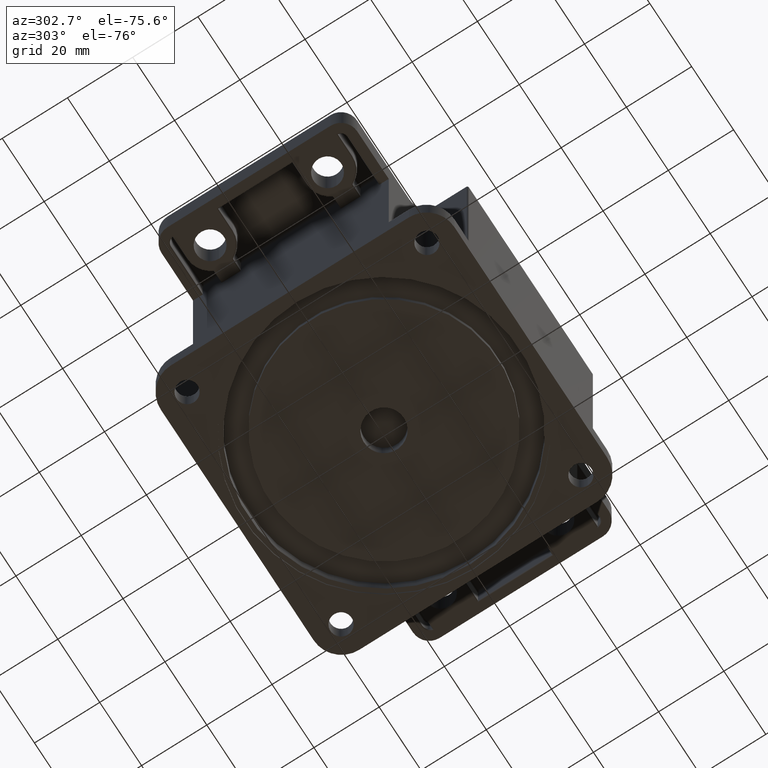
[diagram: clean part render]
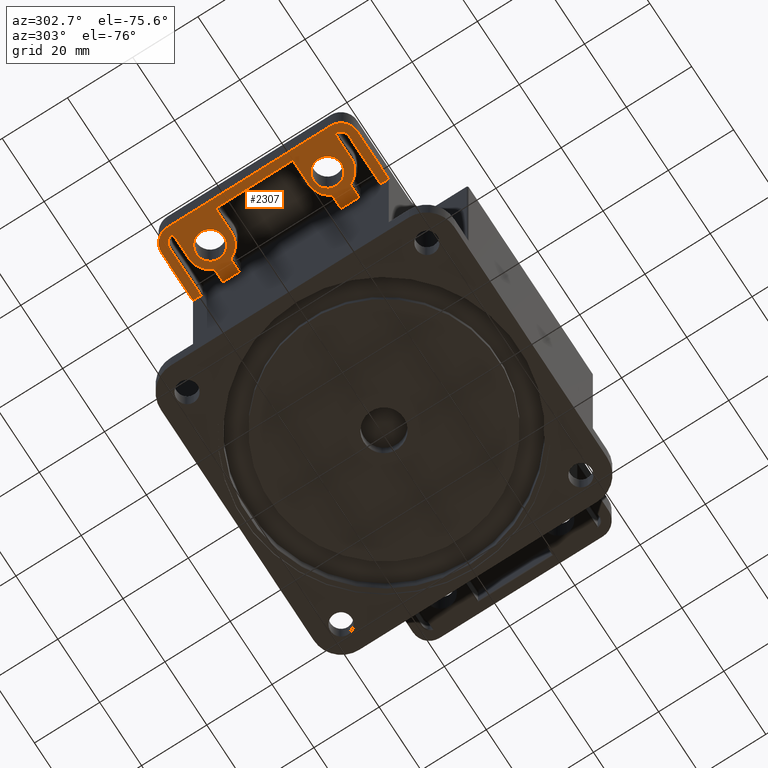
[diagram: same view with one face highlighted and labeled with its STEP entity id]
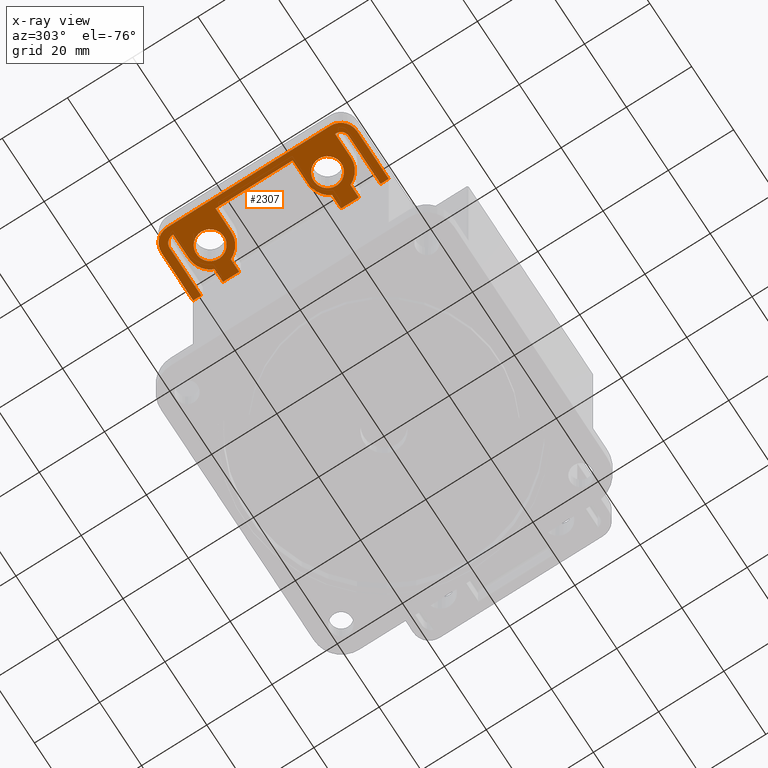
[diagram: x-ray of the same camera — body ghosted, the highlighted face saturated]
A machine part, auxiliary view. The second image highlights one B-rep face of the part: STEP entity #2307.
The next image is the same camera in x-ray: the body ghosted, the highlighted face saturated — about 0% of this face is hidden behind the body in this view.
In plain terms, the highlighted planar face has unit normal (0, -0, 1).
Its self-contained STEP definition (entity closure, byte-faithful):
#818 = EDGE_LOOP ( 'NONE', ( #1808, #1811 ) ) ;
#1808 = ORIENTED_EDGE ( 'NONE', *, *, #2164, .F. ) ;
#1811 = ORIENTED_EDGE ( 'NONE', *, *, #2127, .F. ) ;
#1824 = ORIENTED_EDGE ( 'NONE', *, *, #2146, .T. ) ;
#2123 = ORIENTED_EDGE ( 'NONE', *, *, #2124, .T. ) ;
#2124 = EDGE_CURVE ( 'NONE', #17512, #17479, #7681, .T. ) ;
#2125 = ORIENTED_EDGE ( 'NONE', *, *, #17516, .T. ) ;
#2126 = EDGE_LOOP ( 'NONE', ( #2123, #2125 ) ) ;
#2127 = EDGE_CURVE ( 'NONE', #2175, #2174, #7673, .T. ) ;
#2128 = EDGE_CURVE ( 'NONE', #2488, #2134, #7683, .T. ) ;
#2133 = EDGE_CURVE ( 'NONE', #2148, #2351, #7719, .T. ) ;
#2134 = VERTEX_POINT ( 'NONE', #7721 ) ;
#2145 = EDGE_CURVE ( 'NONE', #2147, #2148, #7714, .T. ) ;
#2146 = EDGE_CURVE ( 'NONE', #2134, #2147, #7765, .T. ) ;
#2147 = VERTEX_POINT ( 'NONE', #7759 ) ;
#2148 = VERTEX_POINT ( 'NONE', #7758 ) ;
#2149 = ORIENTED_EDGE ( 'NONE', *, *, #2145, .T. ) ;
#2150 = ORIENTED_EDGE ( 'NONE', *, *, #2133, .T. ) ;
#2164 = EDGE_CURVE ( 'NONE', #2174, #2175, #7739, .T. ) ;
#2174 = VERTEX_POINT ( 'NONE', #7500 ) ;
#2175 = VERTEX_POINT ( 'NONE', #7506 ) ;
#2205 = EDGE_CURVE ( 'NONE', #2318, #2418, #7796, .T. ) ;
#2294 = EDGE_CURVE ( 'NONE', #2388, #2455, #7952, .T. ) ;
#2307 = ADVANCED_FACE ( 'NONE', ( #8003, #7999, #7994 ), #8011, .F. ) ;
#2316 = EDGE_LOOP ( 'NONE', ( #2338, #2334, #2407, #2369, #2445, #2430, #2429, #2436, #2441, #2435, #2440, #2444, #2446, #2420, #2421, #2502, #2500, #2483, #2503, #2491, #2489, #2486, #2422, #1824, #2149, #2150 ) ) ;
#2318 = VERTEX_POINT ( 'NONE', #8040 ) ;
#2334 = ORIENTED_EDGE ( 'NONE', *, *, #2375, .T. ) ;
#2338 = ORIENTED_EDGE ( 'NONE', *, *, #2354, .T. ) ;
#2351 = VERTEX_POINT ( 'NONE', #8048 ) ;
#2354 = EDGE_CURVE ( 'NONE', #2351, #2378, #8059, .T. ) ;
#2369 = ORIENTED_EDGE ( 'NONE', *, *, #2447, .F. ) ;
#2375 = EDGE_CURVE ( 'NONE', #2378, #2388, #8168, .T. ) ;
#2378 = VERTEX_POINT ( 'NONE', #8157 ) ;
#2388 = VERTEX_POINT ( 'NONE', #8201 ) ;
#2407 = ORIENTED_EDGE ( 'NONE', *, *, #2294, .T. ) ;
#2417 = VERTEX_POINT ( 'NONE', #8207 ) ;
#2418 = VERTEX_POINT ( 'NONE', #8267 ) ;
#2419 = EDGE_CURVE ( 'NONE', #2418, #2417, #8270, .T. ) ;
#2420 = ORIENTED_EDGE ( 'NONE', *, *, #2419, .T. ) ;
#2421 = ORIENTED_EDGE ( 'NONE', *, *, #2496, .T. ) ;
#2422 = ORIENTED_EDGE ( 'NONE', *, *, #2128, .T. ) ;
#2423 = VERTEX_POINT ( 'NONE', #8268 ) ;
#2424 = EDGE_CURVE ( 'NONE', #2432, #2428, #8266, .T. ) ;
#2425 = EDGE_CURVE ( 'NONE', #2448, #2442, #8208, .T. ) ;
#2426 = EDGE_CURVE ( 'NONE', #2431, #2423, #8260, .T. ) ;
#2427 = EDGE_CURVE ( 'NONE', #2432, #2434, #8263, .T. ) ;
#2428 = VERTEX_POINT ( 'NONE', #8244 ) ;
#2429 = ORIENTED_EDGE ( 'NONE', *, *, #2437, .T. ) ;
#2430 = ORIENTED_EDGE ( 'NONE', *, *, #2443, .F. ) ;
#2431 = VERTEX_POINT ( 'NONE', #8258 ) ;
#2432 = VERTEX_POINT ( 'NONE', #8238 ) ;
#2433 = EDGE_CURVE ( 'NONE', #2428, #2431, #8305, .T. ) ;
#2434 = VERTEX_POINT ( 'NONE', #8245 ) ;
#2435 = ORIENTED_EDGE ( 'NONE', *, *, #2433, .T. ) ;
#2436 = ORIENTED_EDGE ( 'NONE', *, *, #2427, .F. ) ;
#2437 = EDGE_CURVE ( 'NONE', #2439, #2434, #8257, .T. ) ;
#2438 = EDGE_CURVE ( 'NONE', #2423, #2318, #8301, .T. ) ;
#2439 = VERTEX_POINT ( 'NONE', #8239 ) ;
#2440 = ORIENTED_EDGE ( 'NONE', *, *, #2426, .T. ) ;
#2441 = ORIENTED_EDGE ( 'NONE', *, *, #2424, .T. ) ;
#2442 = VERTEX_POINT ( 'NONE', #8240 ) ;
#2443 = EDGE_CURVE ( 'NONE', #2439, #2442, #8288, .T. ) ;
#2444 = ORIENTED_EDGE ( 'NONE', *, *, #2438, .T. ) ;
#2445 = ORIENTED_EDGE ( 'NONE', *, *, #2425, .T. ) ;
#2446 = ORIENTED_EDGE ( 'NONE', *, *, #2205, .T. ) ;
#2447 = EDGE_CURVE ( 'NONE', #2448, #2455, #8296, .T. ) ;
#2448 = VERTEX_POINT ( 'NONE', #8282 ) ;
#2455 = VERTEX_POINT ( 'NONE', #8331 ) ;
#2483 = ORIENTED_EDGE ( 'NONE', *, *, #2485, .T. ) ;
#2484 = EDGE_CURVE ( 'NONE', #2488, #2490, #8381, .T. ) ;
#2485 = EDGE_CURVE ( 'NONE', #2492, #2505, #8372, .T. ) ;
#2486 = ORIENTED_EDGE ( 'NONE', *, *, #2484, .F. ) ;
#2487 = VERTEX_POINT ( 'NONE', #8373 ) ;
#2488 = VERTEX_POINT ( 'NONE', #8379 ) ;
#2489 = ORIENTED_EDGE ( 'NONE', *, *, #2501, .T. ) ;
#2490 = VERTEX_POINT ( 'NONE', #8434 ) ;
#2491 = ORIENTED_EDGE ( 'NONE', *, *, #2499, .T. ) ;
#2492 = VERTEX_POINT ( 'NONE', #8387 ) ;
#2493 = VERTEX_POINT ( 'NONE', #8394 ) ;
#2494 = EDGE_CURVE ( 'NONE', #2505, #2493, #8430, .T. ) ;
#2495 = VERTEX_POINT ( 'NONE', #8380 ) ;
#2496 = EDGE_CURVE ( 'NONE', #2417, #2487, #8425, .T. ) ;
#2497 = EDGE_CURVE ( 'NONE', #2495, #2492, #8426, .T. ) ;
#2498 = EDGE_CURVE ( 'NONE', #2487, #2495, #8433, .T. ) ;
#2499 = EDGE_CURVE ( 'NONE', #2493, #2504, #8412, .T. ) ;
#2500 = ORIENTED_EDGE ( 'NONE', *, *, #2497, .T. ) ;
#2501 = EDGE_CURVE ( 'NONE', #2504, #2490, #8419, .T. ) ;
#2502 = ORIENTED_EDGE ( 'NONE', *, *, #2498, .T. ) ;
#2503 = ORIENTED_EDGE ( 'NONE', *, *, #2494, .T. ) ;
#2504 = VERTEX_POINT ( 'NONE', #8403 ) ;
#2505 = VERTEX_POINT ( 'NONE', #8413 ) ;
#7500 = CARTESIAN_POINT ( 'NONE',  ( 50.75000000000001400, 18.00000000000000400, -53.00000000000000700 ) ) ;
#7506 = CARTESIAN_POINT ( 'NONE',  ( 59.25000000000001400, 18.00000000000000400, -53.00000000000000700 ) ) ;
#7664 = DIRECTION ( 'NONE',  ( 0.0000000000000000000, -1.000000000000000000, 0.0000000000000000000 ) ) ;
#7665 = VECTOR ( 'NONE', #7664, 1000.000000000000000 ) ;
#7667 = DIRECTION ( 'NONE',  ( -1.000000000000000000, 0.0000000000000000000, 0.0000000000000000000 ) ) ;
#7668 = DIRECTION ( 'NONE',  ( -0.0000000000000000000, -0.0000000000000000000, 1.000000000000000000 ) ) ;
#7669 = AXIS2_PLACEMENT_3D ( 'NONE', #7679, #7668, #7667 ) ;
#7673 = CIRCLE ( 'NONE', #7669, 4.249999999999996400 ) ;
#7674 = DIRECTION ( 'NONE',  ( -1.000000000000000000, 0.0000000000000000000, 0.0000000000000000000 ) ) ;
#7675 = DIRECTION ( 'NONE',  ( 0.0000000000000000000, 0.0000000000000000000, -1.000000000000000000 ) ) ;
#7676 = AXIS2_PLACEMENT_3D ( 'NONE', #7680, #7675, #7674 ) ;
#7679 = CARTESIAN_POINT ( 'NONE',  ( 55.00000000000001400, 18.00000000000000400, -53.00000000000000700 ) ) ;
#7680 = CARTESIAN_POINT ( 'NONE',  ( 55.00000000000001400, -18.00000000000000400, -53.00000000000000700 ) ) ;
#7681 = CIRCLE ( 'NONE', #7676, 4.249999999999996400 ) ;
#7682 = CARTESIAN_POINT ( 'NONE',  ( 44.99999999999995700, -2.105946769491138600E-015, -53.00000000000000700 ) ) ;
#7683 = LINE ( 'NONE', #7682, #7665 ) ;
#7713 = AXIS2_PLACEMENT_3D ( 'NONE', #7762, #7761, #7760 ) ;
#7714 = CIRCLE ( 'NONE', #7713, 6.499999999999999100 ) ;
#7716 = DIRECTION ( 'NONE',  ( 1.000000000000000000, -0.0000000000000000000, -0.0000000000000000000 ) ) ;
#7717 = VECTOR ( 'NONE', #7716, 1000.000000000000000 ) ;
#7718 = CARTESIAN_POINT ( 'NONE',  ( -123.1251601187257300, -25.17774530898225600, -53.00000000000000700 ) ) ;
#7719 = LINE ( 'NONE', #7718, #7717 ) ;
#7721 = CARTESIAN_POINT ( 'NONE',  ( 44.99999999999995700, -21.17774530898226700, -53.00000000000000700 ) ) ;
#7739 = CIRCLE ( 'NONE', #7754, 4.249999999999996400 ) ;
#7754 = AXIS2_PLACEMENT_3D ( 'NONE', #7792, #7791, #7790 ) ;
#7755 = DIRECTION ( 'NONE',  ( 1.000000000000000000, -0.0000000000000000000, -0.0000000000000000000 ) ) ;
#7756 = VECTOR ( 'NONE', #7755, 1000.000000000000000 ) ;
#7757 = CARTESIAN_POINT ( 'NONE',  ( -123.1251601187257300, -21.17774530898226700, -53.00000000000000700 ) ) ;
#7758 = CARTESIAN_POINT ( 'NONE',  ( 55.00000000000001400, -25.17774530898226400, -53.00000000000000700 ) ) ;
#7759 = CARTESIAN_POINT ( 'NONE',  ( 49.00000000000002100, -21.17774530898226700, -53.00000000000000700 ) ) ;
#7760 = DIRECTION ( 'NONE',  ( -1.000000000000000000, 0.0000000000000000000, 0.0000000000000000000 ) ) ;
#7761 = DIRECTION ( 'NONE',  ( -0.0000000000000000000, -0.0000000000000000000, 1.000000000000000000 ) ) ;
#7762 = CARTESIAN_POINT ( 'NONE',  ( 55.00000000000002100, -18.67774530898226700, -53.00000000000000700 ) ) ;
#7765 = LINE ( 'NONE', #7757, #7756 ) ;
#7790 = DIRECTION ( 'NONE',  ( -1.000000000000000000, 0.0000000000000000000, 0.0000000000000000000 ) ) ;
#7791 = DIRECTION ( 'NONE',  ( -0.0000000000000000000, -0.0000000000000000000, 1.000000000000000000 ) ) ;
#7792 = CARTESIAN_POINT ( 'NONE',  ( 55.00000000000001400, 18.00000000000000400, -53.00000000000000700 ) ) ;
#7796 = CIRCLE ( 'NONE', #7832, 6.499999999999999100 ) ;
#7829 = DIRECTION ( 'NONE',  ( -1.000000000000000000, 0.0000000000000000000, 0.0000000000000000000 ) ) ;
#7830 = DIRECTION ( 'NONE',  ( -0.0000000000000000000, -0.0000000000000000000, 1.000000000000000000 ) ) ;
#7831 = CARTESIAN_POINT ( 'NONE',  ( 55.00000000000001400, 18.00000000000000400, -53.00000000000000700 ) ) ;
#7832 = AXIS2_PLACEMENT_3D ( 'NONE', #7831, #7830, #7829 ) ;
#7946 = VECTOR ( 'NONE', #8013, 1000.000000000000000 ) ;
#7951 = CARTESIAN_POINT ( 'NONE',  ( 44.99999999999995700, -2.105946769491138600E-015, -53.00000000000000700 ) ) ;
#7952 = LINE ( 'NONE', #7951, #7946 ) ;
#7981 = DIRECTION ( 'NONE',  ( -1.000000000000000000, 0.0000000000000000000, -0.0000000000000000000 ) ) ;
#7982 = DIRECTION ( 'NONE',  ( 0.0000000000000000000, 0.0000000000000000000, -1.000000000000000000 ) ) ;
#7983 = CARTESIAN_POINT ( 'NONE',  ( -123.1251601187257300, -2.105946769491138600E-015, -53.00000000000000700 ) ) ;
#7986 = AXIS2_PLACEMENT_3D ( 'NONE', #7983, #7982, #7981 ) ;
#7994 = FACE_BOUND ( 'NONE', #2126, .T. ) ;
#7999 = FACE_BOUND ( 'NONE', #818, .T. ) ;
#8003 = FACE_OUTER_BOUND ( 'NONE', #2316, .T. ) ;
#8011 = PLANE ( 'NONE',  #7986 ) ;
#8013 = DIRECTION ( 'NONE',  ( 0.0000000000000000000, -1.000000000000000000, 0.0000000000000000000 ) ) ;
#8040 = CARTESIAN_POINT ( 'NONE',  ( 55.00000000000001400, 24.49999999999999300, -53.00000000000000700 ) ) ;
#8048 = CARTESIAN_POINT ( 'NONE',  ( 62.52371991999960700, -25.17774530898225600, -53.00000000000000700 ) ) ;
#8059 = CIRCLE ( 'NONE', #8093, 2.500000000000002200 ) ;
#8090 = DIRECTION ( 'NONE',  ( -1.000000000000000000, 0.0000000000000000000, 0.0000000000000000000 ) ) ;
#8091 = DIRECTION ( 'NONE',  ( 0.0000000000000000000, 0.0000000000000000000, -1.000000000000000000 ) ) ;
#8092 = CARTESIAN_POINT ( 'NONE',  ( 60.02891772773481400, -25.33887265449110200, -53.00000000000000700 ) ) ;
#8093 = AXIS2_PLACEMENT_3D ( 'NONE', #8092, #8091, #8090 ) ;
#8157 = CARTESIAN_POINT ( 'NONE',  ( 60.02891772773481400, -27.83887265449110200, -53.00000000000000700 ) ) ;
#8160 = DIRECTION ( 'NONE',  ( -1.000000000000000000, -4.081702296416004700E-016, -0.0000000000000000000 ) ) ;
#8161 = VECTOR ( 'NONE', #8160, 1000.000000000000000 ) ;
#8162 = CARTESIAN_POINT ( 'NONE',  ( -123.1251601187257200, -27.83887265449118000, -53.00000000000000700 ) ) ;
#8168 = LINE ( 'NONE', #8162, #8161 ) ;
#8201 = CARTESIAN_POINT ( 'NONE',  ( 44.99999999999995700, -27.83887265449111200, -53.00000000000000700 ) ) ;
#8207 = CARTESIAN_POINT ( 'NONE',  ( 44.99999999999995700, 20.49999999999998900, -53.00000000000000700 ) ) ;
#8208 = CIRCLE ( 'NONE', #8217, 4.999999999999997300 ) ;
#8217 = AXIS2_PLACEMENT_3D ( 'NONE', #8250, #8249, #8248 ) ;
#8238 = CARTESIAN_POINT ( 'NONE',  ( 44.99999999999995700, 29.66112734550885200, -53.00000000000000700 ) ) ;
#8239 = CARTESIAN_POINT ( 'NONE',  ( 65.00000000000000000, 24.66112734550885200, -53.00000000000000700 ) ) ;
#8240 = CARTESIAN_POINT ( 'NONE',  ( 65.00000000000000000, -25.33887265449111200, -53.00000000000000700 ) ) ;
#8241 = DIRECTION ( 'NONE',  ( 1.000000000000000000, 0.0000000000000000000, 0.0000000000000000000 ) ) ;
#8242 = VECTOR ( 'NONE', #8241, 1000.000000000000000 ) ;
#8243 = CARTESIAN_POINT ( 'NONE',  ( -123.1251601187257300, 29.66112734550886300, -53.00000000000000700 ) ) ;
#8244 = CARTESIAN_POINT ( 'NONE',  ( 44.99999999999995700, 27.16112734550886300, -53.00000000000000700 ) ) ;
#8245 = CARTESIAN_POINT ( 'NONE',  ( 60.00000000000000000, 29.66112734550886300, -53.00000000000000700 ) ) ;
#8246 = DIRECTION ( 'NONE',  ( -1.000000000000000000, 0.0000000000000000000, 0.0000000000000000000 ) ) ;
#8247 = DIRECTION ( 'NONE',  ( 0.0000000000000000000, 0.0000000000000000000, -1.000000000000000000 ) ) ;
#8248 = DIRECTION ( 'NONE',  ( -1.000000000000000000, 0.0000000000000000000, 0.0000000000000000000 ) ) ;
#8249 = DIRECTION ( 'NONE',  ( -0.0000000000000000000, -0.0000000000000000000, 1.000000000000000000 ) ) ;
#8250 = CARTESIAN_POINT ( 'NONE',  ( 60.00000000000000000, -25.33887265449111200, -53.00000000000000700 ) ) ;
#8251 = CARTESIAN_POINT ( 'NONE',  ( 60.02891772773481400, 24.66112734550886300, -53.00000000000000700 ) ) ;
#8253 = AXIS2_PLACEMENT_3D ( 'NONE', #8251, #8247, #8246 ) ;
#8255 = CARTESIAN_POINT ( 'NONE',  ( 60.00000000000000000, 24.66112734550885200, -53.00000000000000700 ) ) ;
#8257 = CIRCLE ( 'NONE', #8300, 4.999999999999997300 ) ;
#8258 = CARTESIAN_POINT ( 'NONE',  ( 60.02891772773481400, 27.16112734550886600, -53.00000000000000700 ) ) ;
#8259 = DIRECTION ( 'NONE',  ( 0.0000000000000000000, -1.000000000000000000, 0.0000000000000000000 ) ) ;
#8260 = CIRCLE ( 'NONE', #8253, 2.500000000000002200 ) ;
#8261 = DIRECTION ( 'NONE',  ( -1.000000000000000000, 0.0000000000000000000, 0.0000000000000000000 ) ) ;
#8262 = VECTOR ( 'NONE', #8261, 1000.000000000000000 ) ;
#8263 = LINE ( 'NONE', #8243, #8242 ) ;
#8264 = VECTOR ( 'NONE', #8259, 1000.000000000000000 ) ;
#8265 = CARTESIAN_POINT ( 'NONE',  ( 44.99999999999995700, -2.105946769491138600E-015, -53.00000000000000700 ) ) ;
#8266 = LINE ( 'NONE', #8265, #8264 ) ;
#8267 = CARTESIAN_POINT ( 'NONE',  ( 49.00000000000000700, 20.49999999999998600, -53.00000000000000700 ) ) ;
#8268 = CARTESIAN_POINT ( 'NONE',  ( 62.52371991999960700, 24.49999999999999300, -53.00000000000000700 ) ) ;
#8269 = CARTESIAN_POINT ( 'NONE',  ( 44.99999999999995700, 20.49999999999998900, -53.00000000000000700 ) ) ;
#8270 = LINE ( 'NONE', #8269, #8262 ) ;
#8278 = DIRECTION ( 'NONE',  ( -1.000000000000000000, 1.734723475976809300E-016, 0.0000000000000000000 ) ) ;
#8279 = VECTOR ( 'NONE', #8278, 1000.000000000000000 ) ;
#8282 = CARTESIAN_POINT ( 'NONE',  ( 60.00000000000000000, -30.33887265449115100, -53.00000000000000700 ) ) ;
#8285 = DIRECTION ( 'NONE',  ( -2.312964634635742500E-016, -1.000000000000000000, 0.0000000000000000000 ) ) ;
#8286 = VECTOR ( 'NONE', #8285, 1000.000000000000000 ) ;
#8287 = CARTESIAN_POINT ( 'NONE',  ( 65.00000000000000000, -4.561863099347103900E-014, -53.00000000000000700 ) ) ;
#8288 = LINE ( 'NONE', #8287, #8286 ) ;
#8292 = DIRECTION ( 'NONE',  ( -1.000000000000000000, 0.0000000000000000000, 0.0000000000000000000 ) ) ;
#8293 = VECTOR ( 'NONE', #8292, 1000.000000000000000 ) ;
#8294 = CARTESIAN_POINT ( 'NONE',  ( 55.00000000000002100, 24.49999999999999300, -53.00000000000000700 ) ) ;
#8295 = CARTESIAN_POINT ( 'NONE',  ( -123.1251601187257300, -30.33887265449111900, -53.00000000000000700 ) ) ;
#8296 = LINE ( 'NONE', #8295, #8279 ) ;
#8298 = DIRECTION ( 'NONE',  ( -1.000000000000000000, 0.0000000000000000000, 0.0000000000000000000 ) ) ;
#8299 = DIRECTION ( 'NONE',  ( -0.0000000000000000000, -0.0000000000000000000, 1.000000000000000000 ) ) ;
#8300 = AXIS2_PLACEMENT_3D ( 'NONE', #8255, #8299, #8298 ) ;
#8301 = LINE ( 'NONE', #8294, #8293 ) ;
#8302 = DIRECTION ( 'NONE',  ( 1.000000000000000000, 2.040851148208002300E-016, 0.0000000000000000000 ) ) ;
#8303 = VECTOR ( 'NONE', #8302, 1000.000000000000000 ) ;
#8304 = CARTESIAN_POINT ( 'NONE',  ( 60.02891772773480700, 27.16112734550886600, -53.00000000000000700 ) ) ;
#8305 = LINE ( 'NONE', #8304, #8303 ) ;
#8331 = CARTESIAN_POINT ( 'NONE',  ( 44.99999999999996400, -30.33887265449111600, -53.00000000000000700 ) ) ;
#8371 = CARTESIAN_POINT ( 'NONE',  ( 62.00000000000000000, 11.49999999999999600, -53.00000000000000700 ) ) ;
#8372 = LINE ( 'NONE', #8371, #8436 ) ;
#8373 = CARTESIAN_POINT ( 'NONE',  ( 44.99999999999995700, 15.50000000000000000, -53.00000000000000700 ) ) ;
#8374 = DIRECTION ( 'NONE',  ( 1.000000000000000000, 0.0000000000000000000, 0.0000000000000000000 ) ) ;
#8375 = VECTOR ( 'NONE', #8374, 1000.000000000000000 ) ;
#8376 = CARTESIAN_POINT ( 'NONE',  ( 1.500000000000004000, -15.67774530898226400, -53.00000000000000700 ) ) ;
#8379 = CARTESIAN_POINT ( 'NONE',  ( 44.99999999999995700, -15.67774530898226400, -53.00000000000000700 ) ) ;
#8380 = CARTESIAN_POINT ( 'NONE',  ( 49.00000000000001400, 15.50000000000000000, -53.00000000000000700 ) ) ;
#8381 = LINE ( 'NONE', #8376, #8375 ) ;
#8387 = CARTESIAN_POINT ( 'NONE',  ( 55.00000000000009200, 11.50000000000000200, -53.00000000000000700 ) ) ;
#8394 = CARTESIAN_POINT ( 'NONE',  ( 62.50000000000000000, -12.17774530898227400, -53.00000000000000700 ) ) ;
#8403 = CARTESIAN_POINT ( 'NONE',  ( 55.00000000000001400, -12.17774530898227400, -53.00000000000000700 ) ) ;
#8408 = DIRECTION ( 'NONE',  ( -1.000000000000000000, -0.0000000000000000000, -0.0000000000000000000 ) ) ;
#8409 = VECTOR ( 'NONE', #8408, 1000.000000000000000 ) ;
#8410 = CARTESIAN_POINT ( 'NONE',  ( -123.1251601187257300, -12.17774530898227400, -53.00000000000000700 ) ) ;
#8412 = LINE ( 'NONE', #8410, #8409 ) ;
#8413 = CARTESIAN_POINT ( 'NONE',  ( 62.50000000000001400, 11.49999999999999600, -53.00000000000000700 ) ) ;
#8414 = DIRECTION ( 'NONE',  ( 1.000000000000000000, 0.0000000000000000000, 0.0000000000000000000 ) ) ;
#8415 = VECTOR ( 'NONE', #8414, 1000.000000000000000 ) ;
#8416 = CARTESIAN_POINT ( 'NONE',  ( 48.67544467966325800, 15.50000000000000000, -53.00000000000000700 ) ) ;
#8417 = DIRECTION ( 'NONE',  ( -1.000000000000000000, 0.0000000000000000000, 0.0000000000000000000 ) ) ;
#8418 = DIRECTION ( 'NONE',  ( -0.0000000000000000000, -0.0000000000000000000, 1.000000000000000000 ) ) ;
#8419 = CIRCLE ( 'NONE', #8420, 6.499999999999999100 ) ;
#8420 = AXIS2_PLACEMENT_3D ( 'NONE', #8473, #8472, #8471 ) ;
#8422 = DIRECTION ( 'NONE',  ( 0.0000000000000000000, -1.000000000000000000, 0.0000000000000000000 ) ) ;
#8423 = VECTOR ( 'NONE', #8422, 1000.000000000000000 ) ;
#8424 = CARTESIAN_POINT ( 'NONE',  ( 44.99999999999995700, -2.105946769491138600E-015, -53.00000000000000700 ) ) ;
#8425 = LINE ( 'NONE', #8424, #8423 ) ;
#8426 = CIRCLE ( 'NONE', #8431, 6.499999999999999100 ) ;
#8427 = DIRECTION ( 'NONE',  ( -3.059781212534762500E-016, -1.000000000000000000, -0.0000000000000000000 ) ) ;
#8428 = VECTOR ( 'NONE', #8427, 1000.000000000000000 ) ;
#8429 = CARTESIAN_POINT ( 'NONE',  ( 62.50000000000000000, -5.890318451999454200E-014, -53.00000000000000700 ) ) ;
#8430 = LINE ( 'NONE', #8429, #8428 ) ;
#8431 = AXIS2_PLACEMENT_3D ( 'NONE', #8432, #8418, #8417 ) ;
#8432 = CARTESIAN_POINT ( 'NONE',  ( 55.00000000000001400, 18.00000000000000400, -53.00000000000000700 ) ) ;
#8433 = LINE ( 'NONE', #8416, #8415 ) ;
#8434 = CARTESIAN_POINT ( 'NONE',  ( 49.23371870266462500, -15.67774530898226400, -53.00000000000000700 ) ) ;
#8435 = DIRECTION ( 'NONE',  ( 1.000000000000000000, 0.0000000000000000000, 0.0000000000000000000 ) ) ;
#8436 = VECTOR ( 'NONE', #8435, 1000.000000000000000 ) ;
#8471 = DIRECTION ( 'NONE',  ( -1.000000000000000000, -1.601283208593976000E-015, 0.0000000000000000000 ) ) ;
#8472 = DIRECTION ( 'NONE',  ( -0.0000000000000000000, -0.0000000000000000000, 1.000000000000000000 ) ) ;
#8473 = CARTESIAN_POINT ( 'NONE',  ( 55.00000000000002100, -18.67774530898226700, -53.00000000000000700 ) ) ;
#13628 = CIRCLE ( 'NONE', #13671, 4.249999999999996400 ) ;
#13640 = CARTESIAN_POINT ( 'NONE',  ( 59.25000000000001400, -18.00000000000000400, -53.00000000000000700 ) ) ;
#13658 = DIRECTION ( 'NONE',  ( -1.000000000000000000, 0.0000000000000000000, 0.0000000000000000000 ) ) ;
#13659 = DIRECTION ( 'NONE',  ( 0.0000000000000000000, 0.0000000000000000000, -1.000000000000000000 ) ) ;
#13660 = CARTESIAN_POINT ( 'NONE',  ( 55.00000000000001400, -18.00000000000000400, -53.00000000000000700 ) ) ;
#13671 = AXIS2_PLACEMENT_3D ( 'NONE', #13660, #13659, #13658 ) ;
#13677 = CARTESIAN_POINT ( 'NONE',  ( 50.75000000000001400, -18.00000000000000400, -53.00000000000000700 ) ) ;
#17479 = VERTEX_POINT ( 'NONE', #13640 ) ;
#17512 = VERTEX_POINT ( 'NONE', #13677 ) ;
#17516 = EDGE_CURVE ( 'NONE', #17479, #17512, #13628, .T. ) ;